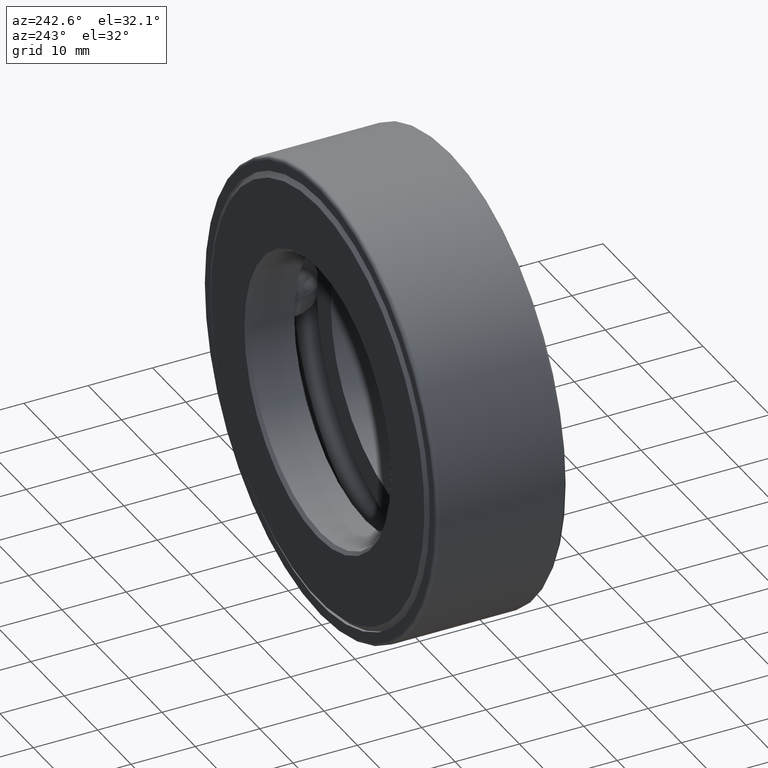
[diagram: clean part render]
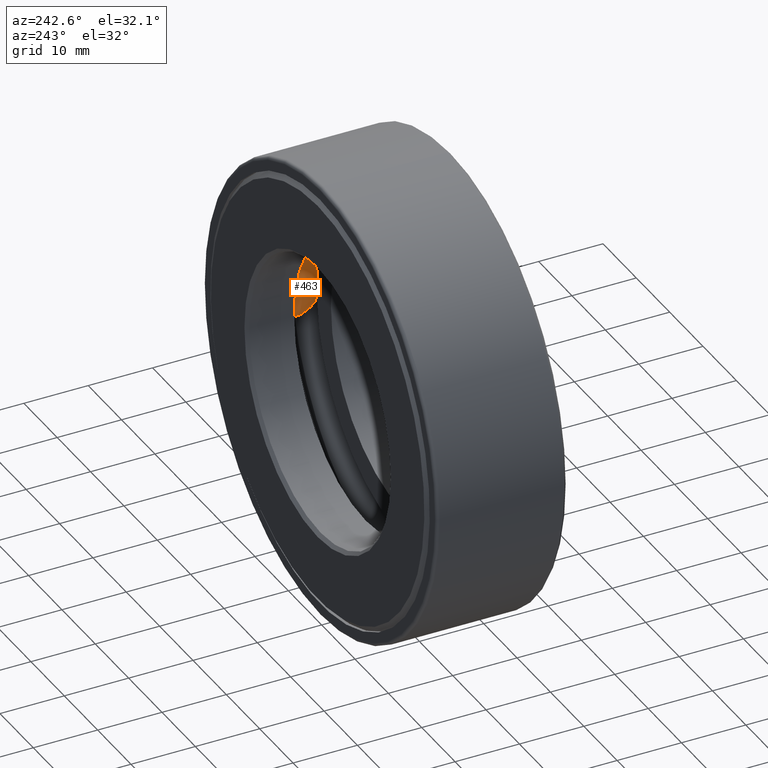
[diagram: same view with one face highlighted and labeled with its STEP entity id]
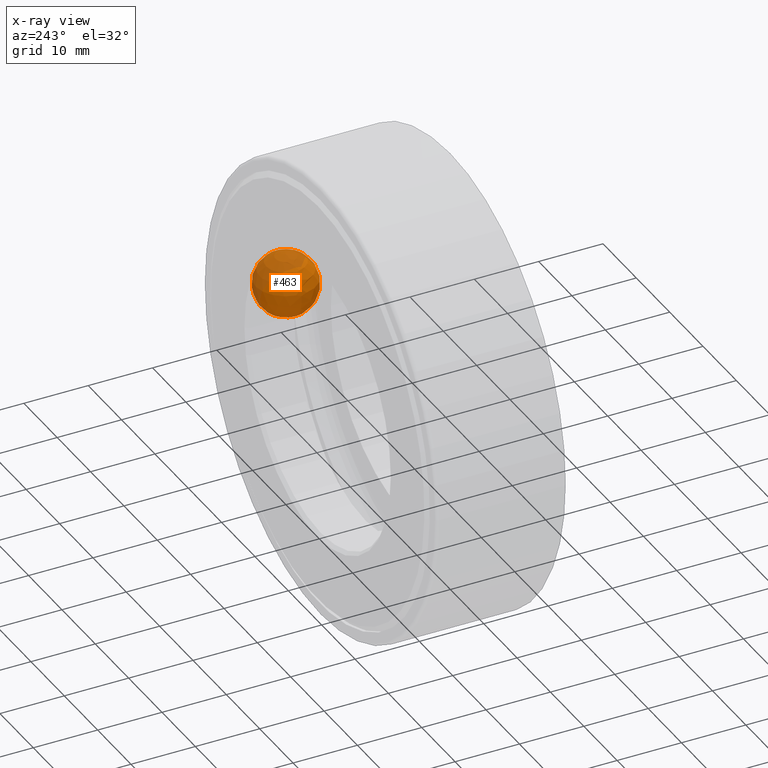
[diagram: x-ray of the same camera — body ghosted, the highlighted face saturated]
A machine part, auxiliary view. The second image highlights one B-rep face of the part: STEP entity #463.
The next image is the same camera in x-ray: the body ghosted, the highlighted face saturated — about 35% of this face is hidden behind the body in this view.
In plain terms, the highlighted spherical surface has radius 4.7625 mm.
Its self-contained STEP definition (entity closure, byte-faithful):
#77 = DIRECTION ( 'NONE',  ( -1.000000000000000000, 0.0000000000000000000, 6.982962677686263600E-015 ) ) ;
#81 = CARTESIAN_POINT ( 'NONE',  ( 1.158500000000000100, 0.4062499999999999400, -8.089762262099541000E-015 ) ) ;
#88 = AXIS2_PLACEMENT_3D ( 'NONE', #81, #121, #77 ) ;
#121 = DIRECTION ( 'NONE',  ( 6.982962677686263600E-015, -0.0000000000000000000, 1.000000000000000000 ) ) ;
#188 = SPHERICAL_SURFACE ( 'NONE', #88, 0.1874999999999999700 ) ;
#463 = ADVANCED_FACE ( 'NONE', ( ), #188, .T. ) ;